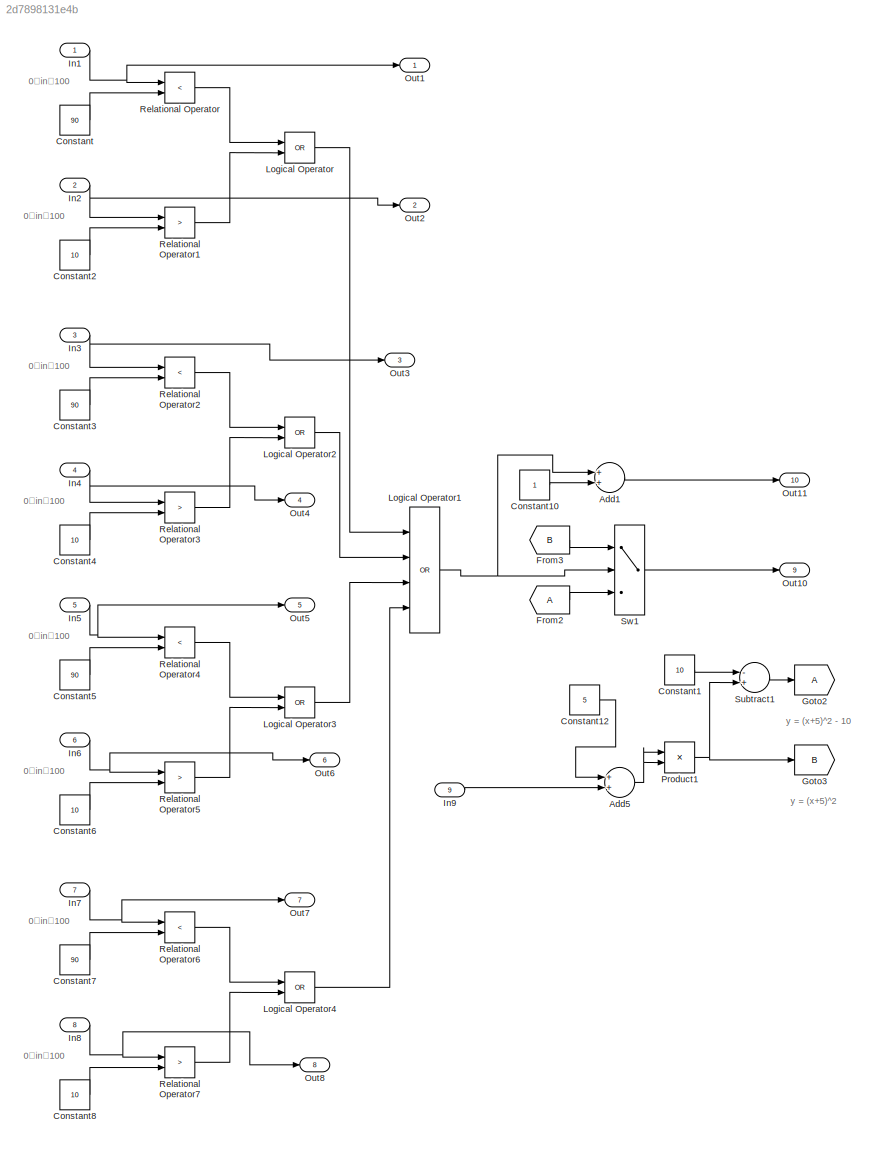
MODEL slx_2d7898131e4b
KIND model
CONFIG AbsTol = auto
CONFIG FixedStep = auto
CONFIG MaxStep = auto
CONFIG MinStep = auto
CONFIG RelTol = 1e-3
CONFIG SampleTimeConstraint = Unconstrained
CONFIG Solver = ode45
CONFIG SolverMode = Auto
CONFIG SolverName = ode45
CONFIG StartTime = 0.0
CONFIG StopTime = 10.0
BLOCK [Sum] Add1
  InputSameDT = off
  OutDataTypeStr = Inherit: Inherit via internal rule
  Ports = [2, 1]
  SaturateOnIntegerOverflow = off
BLOCK [Sum] Add5
  InputSameDT = off
  OutDataTypeStr = Inherit: Inherit via internal rule
  Ports = [2, 1]
  SaturateOnIntegerOverflow = off
BLOCK [Constant] Constant
  Value = 90
BLOCK [Constant] Constant1
  Value = 10
BLOCK [Constant] Constant10
BLOCK [Constant] Constant12
  Value = 5
BLOCK [Constant] Constant2
  Value = 10
BLOCK [Constant] Constant3
  Value = 90
BLOCK [Constant] Constant4
  Value = 10
BLOCK [Constant] Constant5
  Value = 90
BLOCK [Constant] Constant6
  Value = 10
BLOCK [Constant] Constant7
  Value = 90
BLOCK [Constant] Constant8
  Value = 10
BLOCK [From] From2
BLOCK [From] From3
  GotoTag = B
BLOCK [Goto] Goto2
BLOCK [Goto] Goto3
  GotoTag = B
BLOCK [Inport] In1
  IconDisplay = Port number
BLOCK [Inport] In2
  IconDisplay = Port number
  Port = 2
BLOCK [Inport] In3
  IconDisplay = Port number
  Port = 3
BLOCK [Inport] In4
  IconDisplay = Port number
  Port = 4
BLOCK [Inport] In5
  IconDisplay = Port number
  Port = 5
BLOCK [Inport] In6
  IconDisplay = Port number
  Port = 6
BLOCK [Inport] In7
  IconDisplay = Port number
  Port = 7
BLOCK [Inport] In8
  IconDisplay = Port number
  Port = 8
BLOCK [Inport] In9
  IconDisplay = Port number
  Port = 9
BLOCK [Logic] Logical Operator
  AllPortsSameDT = off
  Operator = OR
  OutDataTypeStr = boolean
  Ports = [2, 1]
BLOCK [Logic] Logical Operator1
  AllPortsSameDT = off
  Inputs = 4
  Operator = OR
  OutDataTypeStr = boolean
  Ports = [4, 1]
BLOCK [Logic] Logical Operator2
  AllPortsSameDT = off
  Operator = OR
  OutDataTypeStr = boolean
  Ports = [2, 1]
BLOCK [Logic] Logical Operator3
  AllPortsSameDT = off
  Operator = OR
  OutDataTypeStr = boolean
  Ports = [2, 1]
BLOCK [Logic] Logical Operator4
  AllPortsSameDT = off
  Operator = OR
  OutDataTypeStr = boolean
  Ports = [2, 1]
BLOCK [Outport] Out1 
  IconDisplay = Port number
BLOCK [Outport] Out10
  IconDisplay = Port number
  Port = 9
BLOCK [Outport] Out11
  IconDisplay = Port number
  Port = 10
BLOCK [Outport] Out2
  IconDisplay = Port number
  Port = 2
BLOCK [Outport] Out3 
  IconDisplay = Port number
  Port = 3
BLOCK [Outport] Out4
  IconDisplay = Port number
  Port = 4
BLOCK [Outport] Out5
  IconDisplay = Port number
  Port = 5
BLOCK [Outport] Out6
  IconDisplay = Port number
  Port = 6
BLOCK [Outport] Out7
  IconDisplay = Port number
  Port = 7
BLOCK [Outport] Out8
  IconDisplay = Port number
  Port = 8
BLOCK [Product] Product1
  InputSameDT = off
  OutDataTypeStr = Inherit: Inherit via internal rule
  Ports = [2, 1]
  SaturateOnIntegerOverflow = off
BLOCK [RelationalOperator] Relational Operator
  InputSameDT = off
  Operator = <
  OutDataTypeStr = boolean
  Ports = [2, 1]
BLOCK [RelationalOperator] Relational Operator1
  InputSameDT = off
  Operator = >
  OutDataTypeStr = boolean
  Ports = [2, 1]
BLOCK [RelationalOperator] Relational Operator2
  InputSameDT = off
  Operator = <
  OutDataTypeStr = boolean
  Ports = [2, 1]
BLOCK [RelationalOperator] Relational Operator3
  InputSameDT = off
  Operator = >
  OutDataTypeStr = boolean
  Ports = [2, 1]
BLOCK [RelationalOperator] Relational Operator4
  InputSameDT = off
  Operator = <
  OutDataTypeStr = boolean
  Ports = [2, 1]
BLOCK [RelationalOperator] Relational Operator5
  InputSameDT = off
  Operator = >
  OutDataTypeStr = boolean
  Ports = [2, 1]
BLOCK [RelationalOperator] Relational Operator6
  InputSameDT = off
  Operator = <
  OutDataTypeStr = boolean
  Ports = [2, 1]
BLOCK [RelationalOperator] Relational Operator7
  InputSameDT = off
  Operator = >
  OutDataTypeStr = boolean
  Ports = [2, 1]
BLOCK [Sum] Subtract1
  InputSameDT = off
  Inputs = -+
  OutDataTypeStr = Inherit: Inherit via internal rule
  Ports = [2, 1]
  SaturateOnIntegerOverflow = off
BLOCK [Switch] Sw1
  RndMeth = Simplest
  SaturateOnIntegerOverflow = off
  Threshold = 0.5
ANNOTATION (root): 0≦in≦100
ANNOTATION (root): y = (x+5)^2
ANNOTATION (root): y = (x+5)^2 - 10
LINE Add1:1 -> Out11:1
NET Add5:1 -> Product1:1, Product1:2
LINE Constant10:1 -> Add1:2
LINE Constant12:1 -> Add5:1
LINE Constant1:1 -> Subtract1:1
LINE Constant2:1 -> Relational Operator1:2
LINE Constant3:1 -> Relational Operator2:2
LINE Constant4:1 -> Relational Operator3:2
LINE Constant5:1 -> Relational Operator4:2
LINE Constant6:1 -> Relational Operator5:2
LINE Constant7:1 -> Relational Operator6:2
LINE Constant8:1 -> Relational Operator7:2
LINE Constant:1 -> Relational Operator:2
LINE From2:1 -> Sw1:3
LINE From3:1 -> Sw1:1
NET In1:1 -> Out1 :1, Relational Operator:1
NET In2:1 -> Out2:1, Relational Operator1:1
NET In3:1 -> Out3 :1, Relational Operator2:1
NET In4:1 -> Out4:1, Relational Operator3:1
NET In5:1 -> Out5:1, Relational Operator4:1
NET In6:1 -> Out6:1, Relational Operator5:1
NET In7:1 -> Out7:1, Relational Operator6:1
NET In8:1 -> Out8:1, Relational Operator7:1
LINE In9:1 -> Add5:2
NET Logical Operator1:1 -> Add1:1, Sw1:2
LINE Logical Operator2:1 -> Logical Operator1:2
LINE Logical Operator3:1 -> Logical Operator1:3
LINE Logical Operator4:1 -> Logical Operator1:4
LINE Logical Operator:1 -> Logical Operator1:1
NET Product1:1 -> Goto3:1, Subtract1:2
LINE Relational Operator1:1 -> Logical Operator:2
LINE Relational Operator2:1 -> Logical Operator2:1
LINE Relational Operator3:1 -> Logical Operator2:2
LINE Relational Operator4:1 -> Logical Operator3:1
LINE Relational Operator5:1 -> Logical Operator3:2
LINE Relational Operator6:1 -> Logical Operator4:1
LINE Relational Operator7:1 -> Logical Operator4:2
LINE Relational Operator:1 -> Logical Operator:1
LINE Subtract1:1 -> Goto2:1
LINE Sw1:1 -> Out10:1
note: NET lines group one-source signal fan-out (src -> all destinations, sorted); 1:1 wires keep LINE
